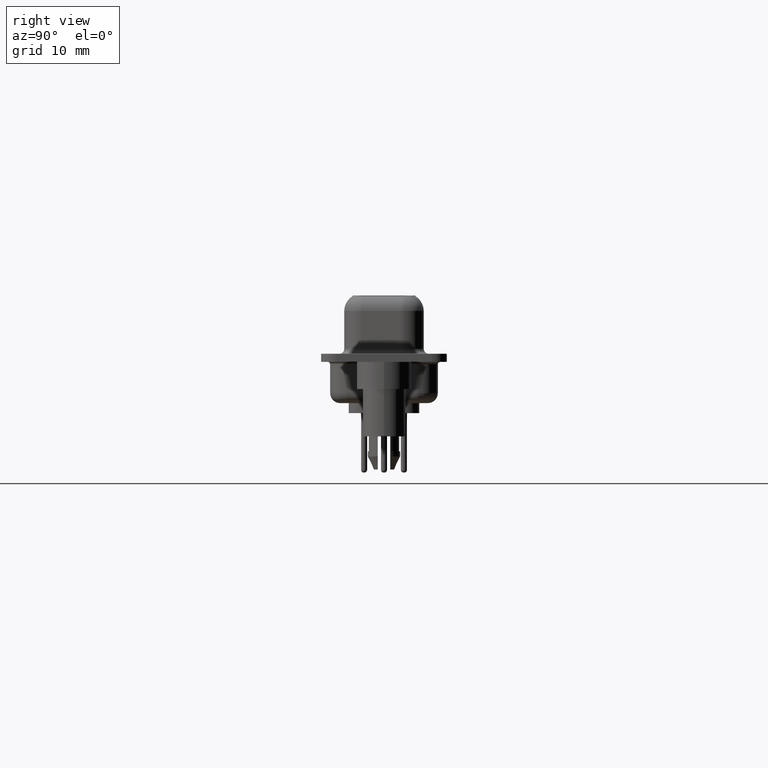
[diagram: clean part render]
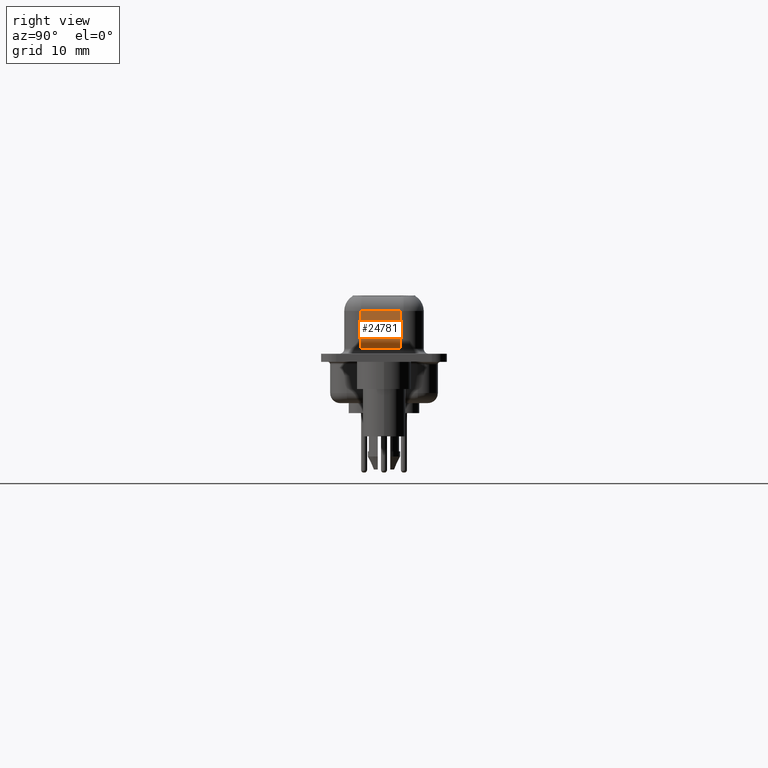
[diagram: same view with one face highlighted and labeled with its STEP entity id]
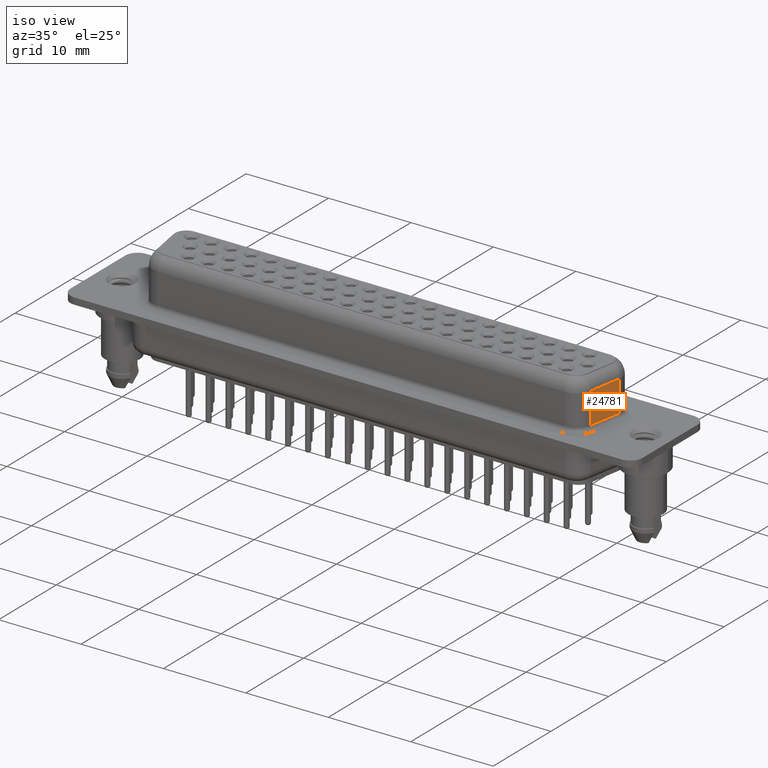
[diagram: same view with one face highlighted and labeled with its STEP entity id]
A machine part, right view. The second image highlights one B-rep face of the part: STEP entity #24781.
A second angle (iso view) of the same face is appended — the face is thin or edge-on in the first view.
In plain terms, the highlighted planar face has unit normal (-0.9848, 0.1736, 0).
Its self-contained STEP definition (entity closure, byte-faithful):
#3429 = CARTESIAN_POINT ( 'NONE',  ( 59.11961550602441662, 1.602703644666149785, 6.400000000000000355 ) ) ;
#3997 = DIRECTION ( 'NONE',  ( -0.9848077530122087975, 0.1736481776669266675, 0.0000000000000000000 ) ) ;
#4135 = VERTEX_POINT ( 'NONE', #17432 ) ;
#4209 = ORIENTED_EDGE ( 'NONE', *, *, #18476, .T. ) ;
#7456 = DIRECTION ( 'NONE',  ( 0.1736481776669266675, 0.9848077530122087975, -0.0000000000000000000 ) ) ;
#8269 = VECTOR ( 'NONE', #28231, 1000.000000000000000 ) ;
#10422 = EDGE_CURVE ( 'NONE', #34930, #4135, #17020, .T. ) ;
#10593 = CARTESIAN_POINT ( 'NONE',  ( 59.11961550602441662, 1.602703644666149785, 0.8999999999999998002 ) ) ;
#11749 = ORIENTED_EDGE ( 'NONE', *, *, #30626, .T. ) ;
#12236 = VECTOR ( 'NONE', #15900, 1000.000000000000000 ) ;
#14502 = LINE ( 'NONE', #18021, #18956 ) ;
#14807 = EDGE_CURVE ( 'NONE', #26506, #4135, #19582, .T. ) ;
#15900 = DIRECTION ( 'NONE',  ( -0.0000000000000000000, -0.0000000000000000000, -1.000000000000000000 ) ) ;
#15954 = DIRECTION ( 'NONE',  ( -0.1736481776669266675, -0.9848077530122087975, 0.0000000000000000000 ) ) ;
#17020 = LINE ( 'NONE', #30939, #12236 ) ;
#17432 = CARTESIAN_POINT ( 'NONE',  ( 59.11961550602441662, 1.602703644666149785, 0.8999999999999998002 ) ) ;
#17626 = VERTEX_POINT ( 'NONE', #27996 ) ;
#18021 = CARTESIAN_POINT ( 'NONE',  ( 59.11961550602441662, 1.602703644666149785, 4.650000000000000355 ) ) ;
#18476 = EDGE_CURVE ( 'NONE', #34930, #17626, #14502, .T. ) ;
#18877 = FACE_OUTER_BOUND ( 'NONE', #33667, .T. ) ;
#18956 = VECTOR ( 'NONE', #26825, 999.9999999999998863 ) ;
#19582 = LINE ( 'NONE', #10593, #32473 ) ;
#22229 = LINE ( 'NONE', #27854, #8269 ) ;
#22542 = CARTESIAN_POINT ( 'NONE',  ( 58.43194028126141859, -2.297296355333851903, 0.8999999999999998002 ) ) ;
#24781 = ADVANCED_FACE ( 'NONE', ( #18877 ), #30440, .F. ) ;
#26130 = AXIS2_PLACEMENT_3D ( 'NONE', #3429, #3997, #15954 ) ;
#26506 = VERTEX_POINT ( 'NONE', #22542 ) ;
#26825 = DIRECTION ( 'NONE',  ( -0.1736481776669266675, -0.9848077530122087975, -0.0000000000000000000 ) ) ;
#27854 = CARTESIAN_POINT ( 'NONE',  ( 58.43194028126141859, -2.297296355333851903, 6.400000000000000355 ) ) ;
#27974 = ORIENTED_EDGE ( 'NONE', *, *, #14807, .T. ) ;
#27996 = CARTESIAN_POINT ( 'NONE',  ( 58.43194028126141859, -2.297296355333851903, 4.650000000000000355 ) ) ;
#28231 = DIRECTION ( 'NONE',  ( -0.0000000000000000000, -0.0000000000000000000, -1.000000000000000000 ) ) ;
#30440 = PLANE ( 'NONE',  #26130 ) ;
#30626 = EDGE_CURVE ( 'NONE', #17626, #26506, #22229, .T. ) ;
#30939 = CARTESIAN_POINT ( 'NONE',  ( 59.11961550602441662, 1.602703644666149785, 6.400000000000000355 ) ) ;
#32473 = VECTOR ( 'NONE', #7456, 999.9999999999998863 ) ;
#33261 = CARTESIAN_POINT ( 'NONE',  ( 59.11961550602441662, 1.602703644666149785, 4.650000000000000355 ) ) ;
#33667 = EDGE_LOOP ( 'NONE', ( #37523, #4209, #11749, #27974 ) ) ;
#34930 = VERTEX_POINT ( 'NONE', #33261 ) ;
#37523 = ORIENTED_EDGE ( 'NONE', *, *, #10422, .F. ) ;